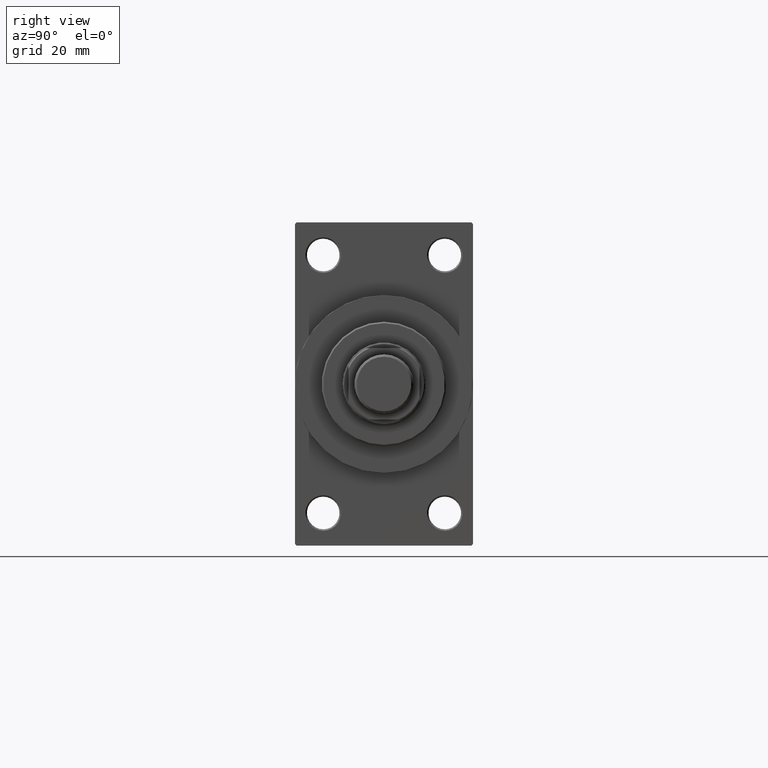
[diagram: clean part render]
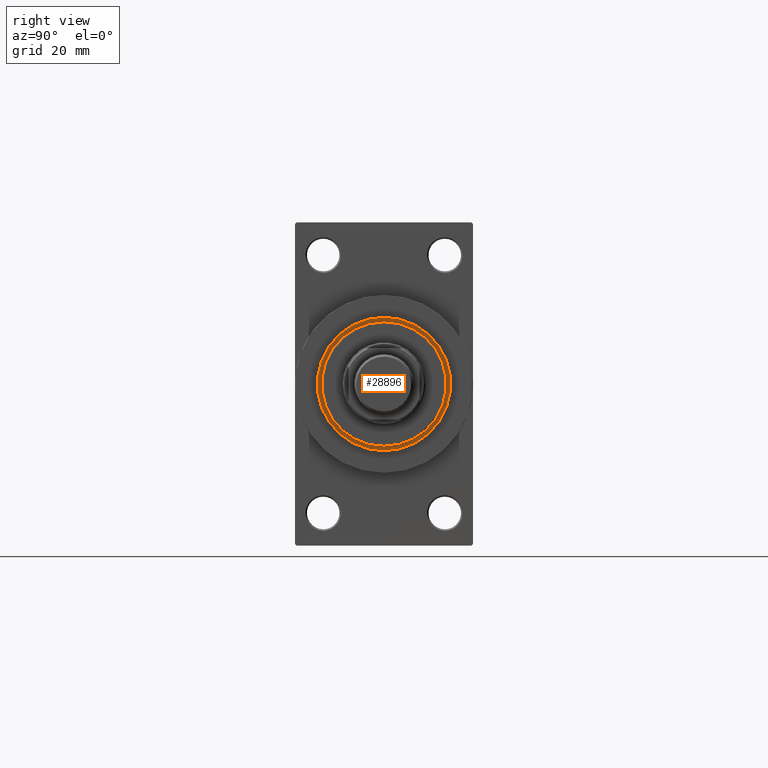
[diagram: same view with one face highlighted and labeled with its STEP entity id]
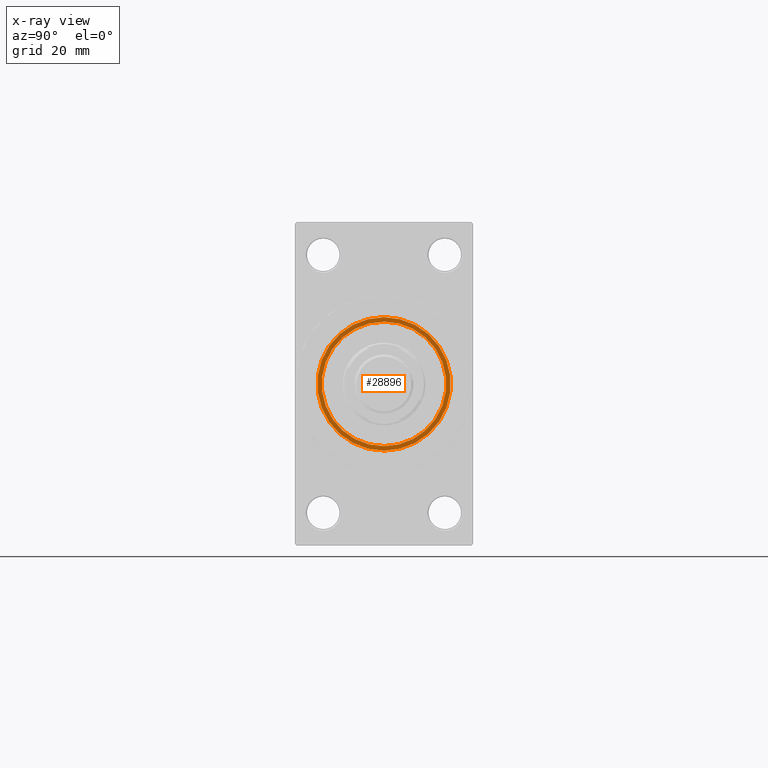
[diagram: x-ray of the same camera — body ghosted, the highlighted face saturated]
A machine part, right view. The second image highlights one B-rep face of the part: STEP entity #28896.
The next image is the same camera in x-ray: the body ghosted, the highlighted face saturated — about 0% of this face is hidden behind the body in this view.
In plain terms, the highlighted planar face has unit normal (1, -0, -0).
Its self-contained STEP definition (entity closure, byte-faithful):
#1266 = DIRECTION ( 'NONE',  ( 1.000000000000000000, 0.000000000000000000, 0.000000000000000000 ) ) ;
#1774 = CARTESIAN_POINT ( 'NONE',  ( 0.000000000000000000, 0.000000000000000000, 43.25999999999999801 ) ) ;
#2017 = FACE_OUTER_BOUND ( 'NONE', #26185, .T. ) ;
#2365 = CARTESIAN_POINT ( 'NONE',  ( 0.000000000000000000, 0.000000000000000000, 43.25999999999999801 ) ) ;
#2416 = CIRCLE ( 'NONE', #8588, 22.50000000000000355 ) ;
#6398 = CARTESIAN_POINT ( 'NONE',  ( 0.000000000000000000, 0.000000000000000000, 43.25999999999999801 ) ) ;
#7262 = AXIS2_PLACEMENT_3D ( 'NONE', #34309, #12114, #1266 ) ;
#7284 = CARTESIAN_POINT ( 'NONE',  ( 0.000000000000000000, 0.000000000000000000, 43.25999999999999801 ) ) ;
#8588 = AXIS2_PLACEMENT_3D ( 'NONE', #2365, #39729, #32007 ) ;
#9779 = DIRECTION ( 'NONE',  ( 0.000000000000000000, 0.000000000000000000, 1.000000000000000000 ) ) ;
#10072 = CIRCLE ( 'NONE', #13182, 21.00000000000000000 ) ;
#10875 = AXIS2_PLACEMENT_3D ( 'NONE', #1774, #38442, #35297 ) ;
#12114 = DIRECTION ( 'NONE',  ( 0.000000000000000000, 0.000000000000000000, 1.000000000000000000 ) ) ;
#12625 = CIRCLE ( 'NONE', #7262, 22.50000000000000355 ) ;
#13182 = AXIS2_PLACEMENT_3D ( 'NONE', #7284, #15241, #44422 ) ;
#15003 = CARTESIAN_POINT ( 'NONE',  ( -21.00000000000000000, 0.000000000000000000, 43.25999999999999801 ) ) ;
#15241 = DIRECTION ( 'NONE',  ( 0.000000000000000000, 0.000000000000000000, 1.000000000000000000 ) ) ;
#15462 = VERTEX_POINT ( 'NONE', #15003 ) ;
#17321 = EDGE_LOOP ( 'NONE', ( #32779, #44622 ) ) ;
#17381 = ORIENTED_EDGE ( 'NONE', *, *, #19617, .T. ) ;
#18221 = CARTESIAN_POINT ( 'NONE',  ( 22.50000000000000355, 2.755455298081545172E-15, 43.25999999999999801 ) ) ;
#19617 = EDGE_CURVE ( 'NONE', #33664, #32374, #12625, .T. ) ;
#23433 = CARTESIAN_POINT ( 'NONE',  ( 21.00000000000000000, 2.571758278209441661E-15, 43.25999999999999801 ) ) ;
#23474 = PLANE ( 'NONE',  #10875 ) ;
#26185 = EDGE_LOOP ( 'NONE', ( #38088, #17381 ) ) ;
#28072 = CIRCLE ( 'NONE', #31927, 21.00000000000000000 ) ;
#28896 = ADVANCED_FACE ( 'NONE', ( #45901, #2017 ), #23474, .T. ) ;
#29054 = EDGE_CURVE ( 'NONE', #15462, #41585, #10072, .T. ) ;
#29379 = EDGE_CURVE ( 'NONE', #32374, #33664, #2416, .T. ) ;
#31927 = AXIS2_PLACEMENT_3D ( 'NONE', #6398, #9779, #32188 ) ;
#32007 = DIRECTION ( 'NONE',  ( 1.000000000000000000, 0.000000000000000000, 0.000000000000000000 ) ) ;
#32188 = DIRECTION ( 'NONE',  ( 1.000000000000000000, 0.000000000000000000, 0.000000000000000000 ) ) ;
#32374 = VERTEX_POINT ( 'NONE', #45651 ) ;
#32779 = ORIENTED_EDGE ( 'NONE', *, *, #29054, .F. ) ;
#33664 = VERTEX_POINT ( 'NONE', #18221 ) ;
#34309 = CARTESIAN_POINT ( 'NONE',  ( 0.000000000000000000, 0.000000000000000000, 43.25999999999999801 ) ) ;
#35297 = DIRECTION ( 'NONE',  ( 1.000000000000000000, 0.000000000000000000, -0.000000000000000000 ) ) ;
#38088 = ORIENTED_EDGE ( 'NONE', *, *, #29379, .T. ) ;
#38442 = DIRECTION ( 'NONE',  ( 0.000000000000000000, 0.000000000000000000, 1.000000000000000000 ) ) ;
#39729 = DIRECTION ( 'NONE',  ( 0.000000000000000000, 0.000000000000000000, 1.000000000000000000 ) ) ;
#41212 = EDGE_CURVE ( 'NONE', #41585, #15462, #28072, .T. ) ;
#41585 = VERTEX_POINT ( 'NONE', #23433 ) ;
#44422 = DIRECTION ( 'NONE',  ( 1.000000000000000000, 0.000000000000000000, 0.000000000000000000 ) ) ;
#44622 = ORIENTED_EDGE ( 'NONE', *, *, #41212, .F. ) ;
#45651 = CARTESIAN_POINT ( 'NONE',  ( -22.50000000000000355, 0.000000000000000000, 43.25999999999999801 ) ) ;
#45901 = FACE_BOUND ( 'NONE', #17321, .T. ) ;